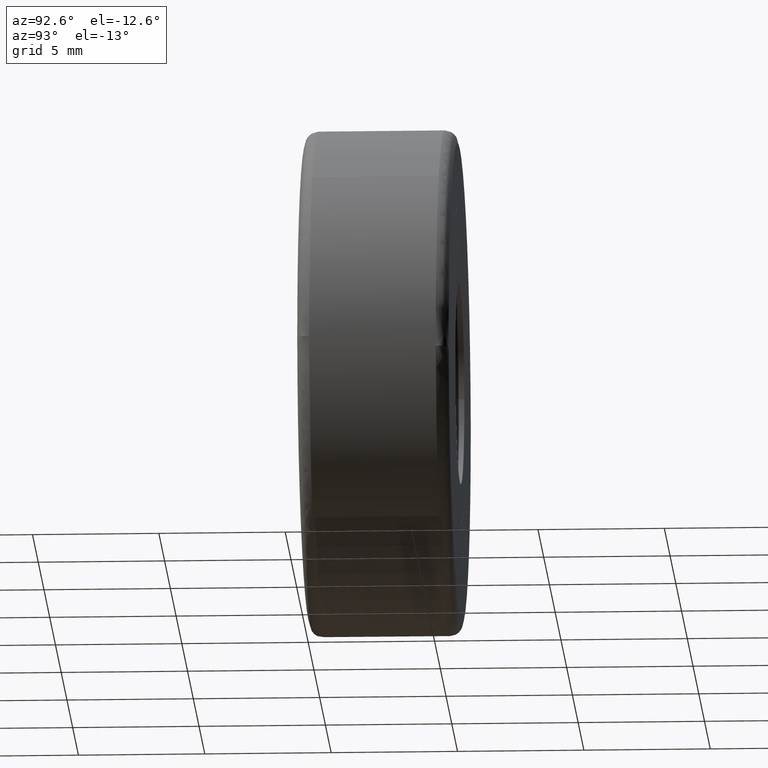
[diagram: clean part render]
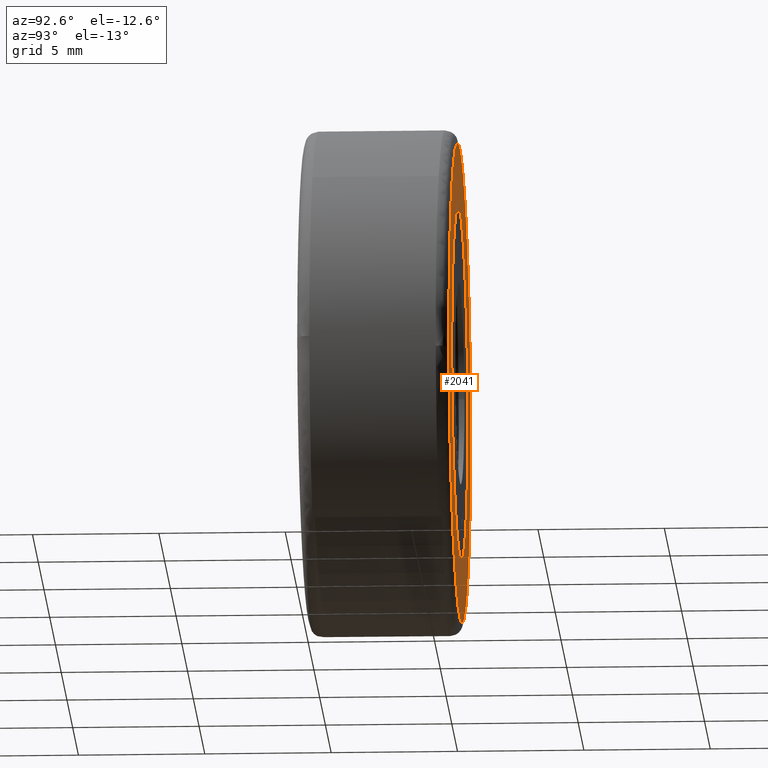
[diagram: same view with one face highlighted and labeled with its STEP entity id]
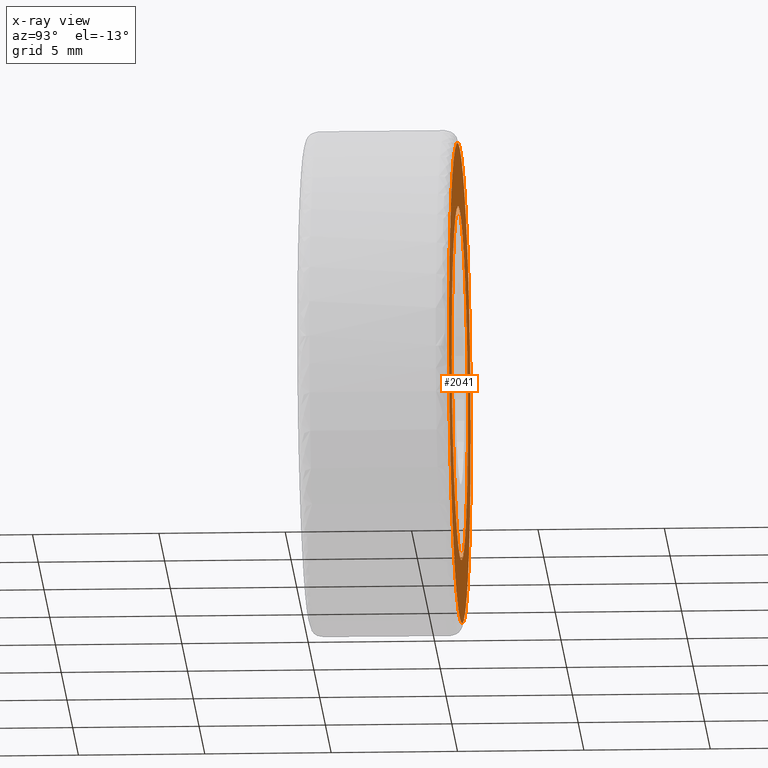
[diagram: x-ray of the same camera — body ghosted, the highlighted face saturated]
A machine part, auxiliary view. The second image highlights one B-rep face of the part: STEP entity #2041.
The next image is the same camera in x-ray: the body ghosted, the highlighted face saturated — about 0% of this face is hidden behind the body in this view.
In plain terms, the highlighted face is a freeform B-spline surface patch.
Its self-contained STEP definition (entity closure, byte-faithful):
#79=CARTESIAN_POINT('',(-6.978421490039057,5.999999999999999,0.549211714511988));
#80=VERTEX_POINT('',#79);
#86=CARTESIAN_POINT('',(0.0,6.0,7.0));
#87=VERTEX_POINT('',#86);
#88=CARTESIAN_POINT('',(0.0,6.0,7.0));
#89=CARTESIAN_POINT('',(-6.470735260526864,5.999999999999999,6.999999999999999));
#90=CARTESIAN_POINT('',(-6.978421490039057,5.999999999999999,0.549211714511988));
#98=(BOUNDED_CURVE()B_SPLINE_CURVE(2,(#88,#89,#90),.UNSPECIFIED.,.F.,.U.)B_SPLINE_CURVE_WITH_KNOTS((3,3),(0.0,0.236331348671542),.UNSPECIFIED.)CURVE()GEOMETRIC_REPRESENTATION_ITEM()RATIONAL_B_SPLINE_CURVE((1.0,0.723120602324270,0.969723456425097))REPRESENTATION_ITEM(''));
#99=EDGE_CURVE('',#87,#80,#98,.T.);
#101=CARTESIAN_POINT('',(6.978421490039057,6.0,-0.549211714511989));
#102=VERTEX_POINT('',#101);
#103=CARTESIAN_POINT('',(6.978421490039057,5.999999999999999,-0.549211714511989));
#104=CARTESIAN_POINT('',(6.999999999999999,6.000000000000001,-0.275029766724631));
#105=CARTESIAN_POINT('',(7.0,6.0,0.0));
#106=CARTESIAN_POINT('',(6.999999999999999,6.0,6.999999999999999));
#107=CARTESIAN_POINT('',(0.0,6.0,7.0));
#115=(BOUNDED_CURVE()B_SPLINE_CURVE(2,(#103,#104,#105,#106,#107),.UNSPECIFIED.,.F.,.U.)B_SPLINE_CURVE_WITH_KNOTS((3,2,3),(0.736331348671542,0.750000000000000,1.0),.UNSPECIFIED.)CURVE()GEOMETRIC_REPRESENTATION_ITEM()RATIONAL_B_SPLINE_CURVE((0.969723456425097,0.983986178862277,1.0,0.707106781186547,1.0))REPRESENTATION_ITEM(''));
#116=EDGE_CURVE('',#102,#87,#115,.T.);
#192=CARTESIAN_POINT('',(0.0,6.0,-7.0));
#193=VERTEX_POINT('',#192);
#194=CARTESIAN_POINT('',(0.0,6.0,-7.0));
#195=CARTESIAN_POINT('',(6.470735260526862,6.0,-6.999999999999999));
#196=CARTESIAN_POINT('',(6.978421490039057,5.999999999999999,-0.549211714511989));
#204=(BOUNDED_CURVE()B_SPLINE_CURVE(2,(#194,#195,#196),.UNSPECIFIED.,.F.,.U.)B_SPLINE_CURVE_WITH_KNOTS((3,3),(0.500000000000000,0.736331348671542),.UNSPECIFIED.)CURVE()GEOMETRIC_REPRESENTATION_ITEM()RATIONAL_B_SPLINE_CURVE((1.0,0.723120602324270,0.969723456425097))REPRESENTATION_ITEM(''));
#205=EDGE_CURVE('',#193,#102,#204,.T.);
#207=CARTESIAN_POINT('',(-6.978421490039057,5.999999999999999,0.549211714511988));
#208=CARTESIAN_POINT('',(-7.0,6.000000000000001,0.275029766724630));
#209=CARTESIAN_POINT('',(-7.0,6.0,0.0));
#210=CARTESIAN_POINT('',(-6.999999999999999,6.0,-6.999999999999999));
#211=CARTESIAN_POINT('',(0.0,6.0,-7.0));
#219=(BOUNDED_CURVE()B_SPLINE_CURVE(2,(#207,#208,#209,#210,#211),.UNSPECIFIED.,.F.,.U.)B_SPLINE_CURVE_WITH_KNOTS((3,2,3),(0.236331348671542,0.250000000000000,0.500000000000000),.UNSPECIFIED.)CURVE()GEOMETRIC_REPRESENTATION_ITEM()RATIONAL_B_SPLINE_CURVE((0.969723456425097,0.983986178862277,1.0,0.707106781186547,1.0))REPRESENTATION_ITEM(''));
#220=EDGE_CURVE('',#80,#193,#219,.T.);
#1773=CARTESIAN_POINT('',(9.476873902700479,6.0,-0.662465890081167));
#1774=VERTEX_POINT('',#1773);
#1788=CARTESIAN_POINT('',(0.0,6.0,9.500000000000000));
#1789=VERTEX_POINT('',#1788);
#1790=CARTESIAN_POINT('',(9.476873902700479,6.000000000000001,-0.662465890081167));
#1791=CARTESIAN_POINT('',(9.500000000000000,6.000000000000001,-0.331636600839167));
#1792=CARTESIAN_POINT('',(9.500000000000000,6.0,-1.746479E-016));
#1793=CARTESIAN_POINT('',(9.500000000000000,6.0,9.500000000000000));
#1794=CARTESIAN_POINT('',(0.0,6.0,9.500000000000000));
#1802=(BOUNDED_CURVE()B_SPLINE_CURVE(2,(#1790,#1791,#1792,#1793,#1794),.UNSPECIFIED.,.F.,.U.)B_SPLINE_CURVE_WITH_KNOTS((3,2,3),(0.237833686534071,0.250000000000000,0.500000000000000),.UNSPECIFIED.)CURVE()GEOMETRIC_REPRESENTATION_ITEM()RATIONAL_B_SPLINE_CURVE((0.972879876384818,0.985746277151483,1.0,0.707106781186548,1.0))REPRESENTATION_ITEM(''));
#1803=EDGE_CURVE('',#1774,#1789,#1802,.T.);
#1805=CARTESIAN_POINT('',(-9.499249921251648,6.0,0.119377378944356));
#1806=VERTEX_POINT('',#1805);
#1807=CARTESIAN_POINT('',(0.0,6.0,9.500000000000000));
#1808=CARTESIAN_POINT('',(-9.381363334048462,6.0,9.500000000000000));
#1809=CARTESIAN_POINT('',(-9.499249921251648,5.999999999999999,0.119377378944356));
#1817=(BOUNDED_CURVE()B_SPLINE_CURVE(2,(#1807,#1808,#1809),.UNSPECIFIED.,.F.,.U.)B_SPLINE_CURVE_WITH_KNOTS((3,3),(0.500000000000000,0.747784295920397),.UNSPECIFIED.)CURVE()GEOMETRIC_REPRESENTATION_ITEM()RATIONAL_B_SPLINE_CURVE((1.0,0.709702639985800,0.994854295640948))REPRESENTATION_ITEM(''));
#1818=EDGE_CURVE('',#1789,#1806,#1817,.T.);
#1864=CARTESIAN_POINT('',(0.0,6.0,-9.500000000000000));
#1865=VERTEX_POINT('',#1864);
#1866=CARTESIAN_POINT('',(-9.499249921251648,6.0,0.119377378944356));
#1867=CARTESIAN_POINT('',(-9.500000000000000,6.0,0.059691045958930));
#1868=CARTESIAN_POINT('',(-9.500000000000000,6.0,-1.746479E-016));
#1869=CARTESIAN_POINT('',(-9.500000000000000,6.0,-9.500000000000000));
#1870=CARTESIAN_POINT('',(0.0,6.0,-9.500000000000000));
#1878=(BOUNDED_CURVE()B_SPLINE_CURVE(2,(#1866,#1867,#1868,#1869,#1870),.UNSPECIFIED.,.F.,.U.)B_SPLINE_CURVE_WITH_KNOTS((3,2,3),(0.747784295920396,0.750000000000000,1.0),.UNSPECIFIED.)CURVE()GEOMETRIC_REPRESENTATION_ITEM()RATIONAL_B_SPLINE_CURVE((0.994854295640947,0.997404141200747,1.0,0.707106781186548,1.0))REPRESENTATION_ITEM(''));
#1879=EDGE_CURVE('',#1806,#1865,#1878,.T.);
#1881=CARTESIAN_POINT('',(0.0,6.0,-9.500000000000000));
#1882=CARTESIAN_POINT('',(8.859100048977979,6.0,-9.499999999999998));
#1883=CARTESIAN_POINT('',(9.476873902700479,6.000000000000001,-0.662465890081167));
#1891=(BOUNDED_CURVE()B_SPLINE_CURVE(2,(#1881,#1882,#1883),.UNSPECIFIED.,.F.,.U.)B_SPLINE_CURVE_WITH_KNOTS((3,3),(0.0,0.237833686534071),.UNSPECIFIED.)CURVE()GEOMETRIC_REPRESENTATION_ITEM()RATIONAL_B_SPLINE_CURVE((1.0,0.721360504035065,0.972879876384818))REPRESENTATION_ITEM(''));
#1892=EDGE_CURVE('',#1865,#1774,#1891,.T.);
#2024=CARTESIAN_POINT('',(-10.448207924965089,6.0,10.449049963174311));
#2025=CARTESIAN_POINT('',(-10.448207924965089,6.0,-10.449050472794029));
#2026=CARTESIAN_POINT('',(10.447875042386590,6.0,10.449049963174311));
#2027=CARTESIAN_POINT('',(10.447875042386590,6.0,-10.449050472794029));
#2028=B_SPLINE_SURFACE_WITH_KNOTS('',1,1,((#2024,#2026),(#2025,#2027)),.UNSPECIFIED.,.F.,.F.,.U.,(2,2),(2,2),(0.0,20.898100435968342),(0.0,20.896082967351671),.UNSPECIFIED.);
#2029=ORIENTED_EDGE('',*,*,#1879,.F.);
#2030=ORIENTED_EDGE('',*,*,#1818,.F.);
#2031=ORIENTED_EDGE('',*,*,#1803,.F.);
#2032=ORIENTED_EDGE('',*,*,#1892,.F.);
#2033=EDGE_LOOP('',(#2029,#2030,#2031,#2032));
#2034=FACE_OUTER_BOUND('',#2033,.T.);
#2035=ORIENTED_EDGE('',*,*,#205,.T.);
#2036=ORIENTED_EDGE('',*,*,#116,.T.);
#2037=ORIENTED_EDGE('',*,*,#99,.T.);
#2038=ORIENTED_EDGE('',*,*,#220,.T.);
#2039=EDGE_LOOP('',(#2035,#2036,#2037,#2038));
#2040=FACE_BOUND('',#2039,.T.);
#2041=ADVANCED_FACE('',(#2034,#2040),#2028,.F.);